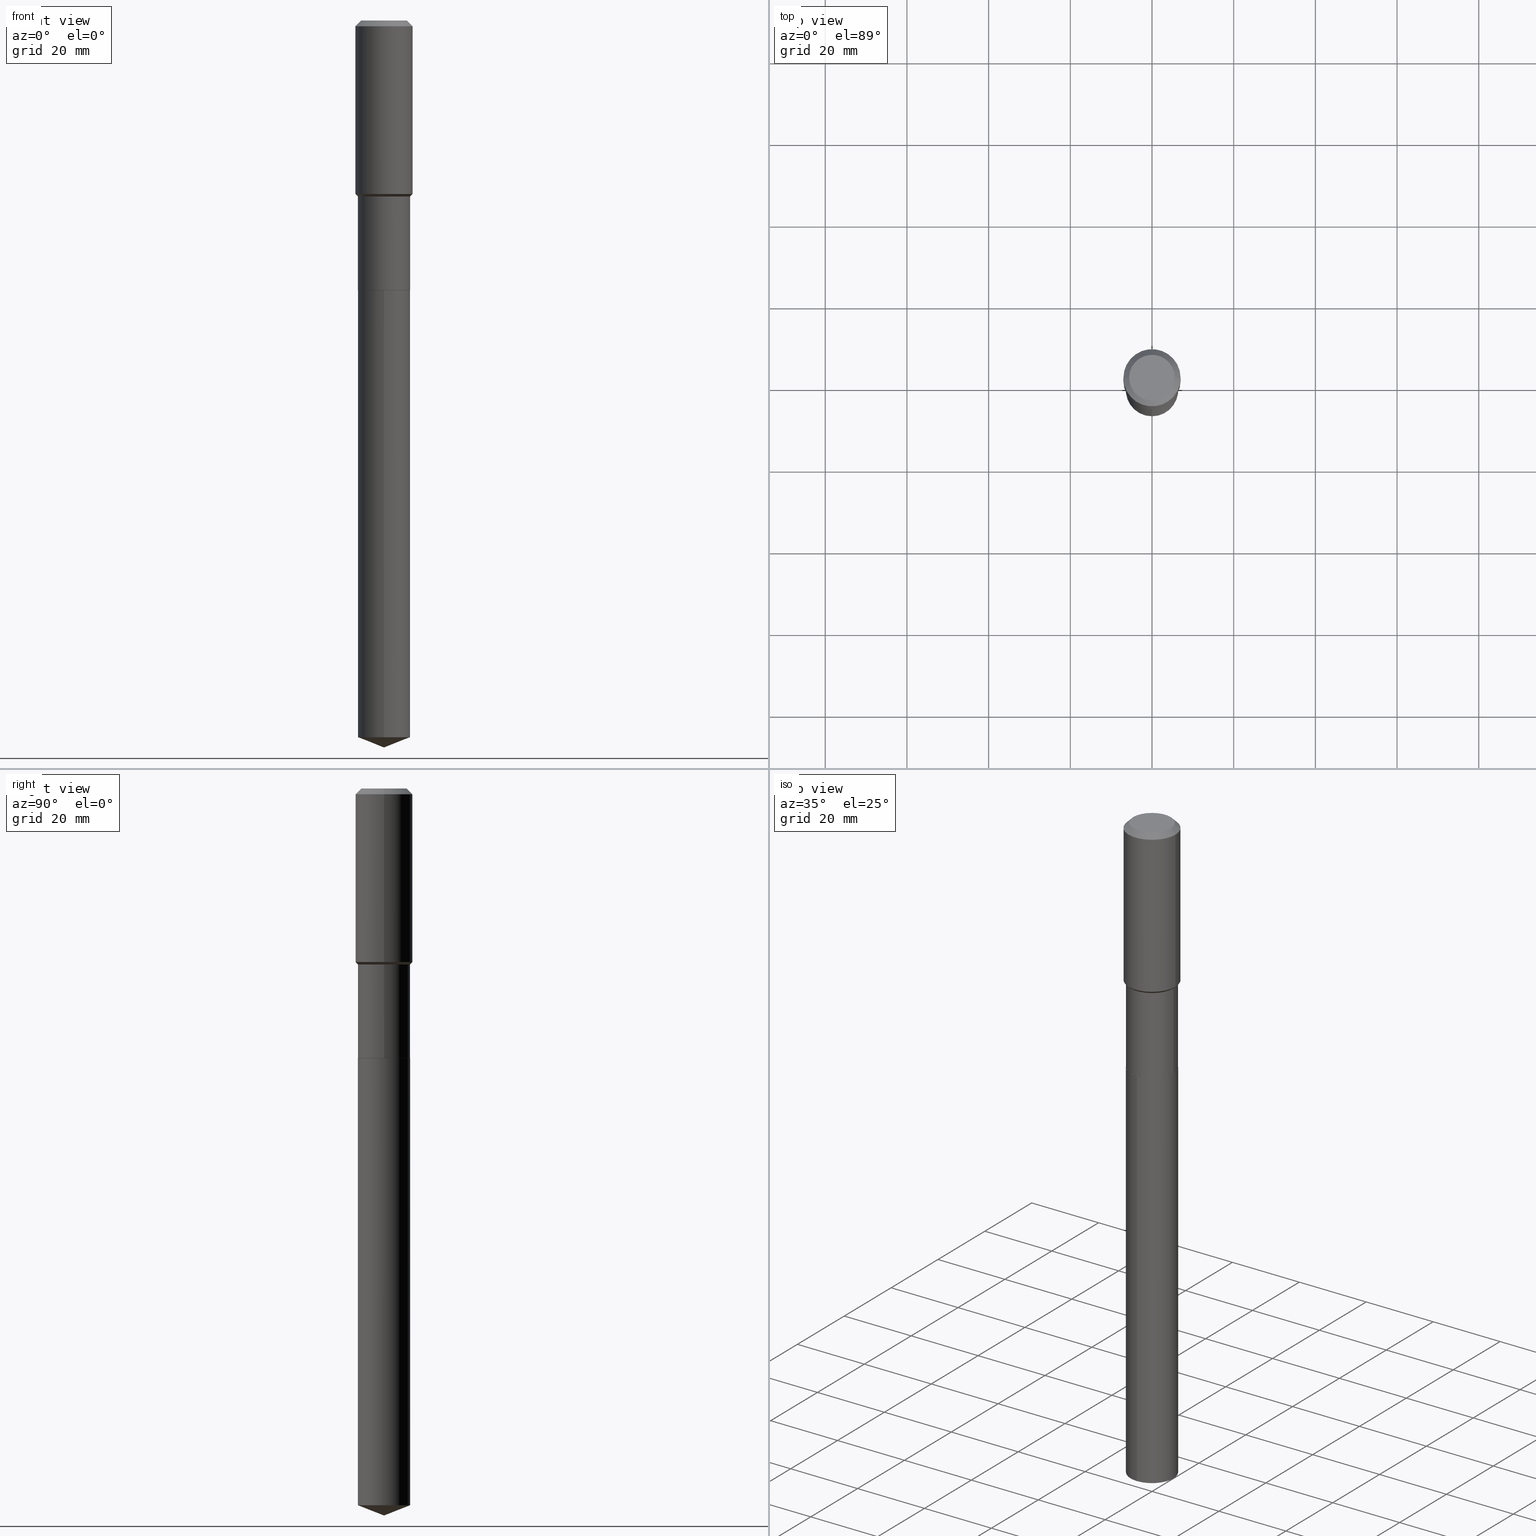
[diagram: canonical four-view strip — front | top / right | iso, engineering-drawing reading convention]
A machine part, canonical four-view strip (front | top / right | iso — engineering-drawing reading convention). The complete STEP part file that produces these views, byte-faithful:
ISO-10303-21;
HEADER;
FILE_DESCRIPTION (( 'STEP AP203' ),
    '1' );
FILE_NAME ('66698.STEP',
    '2024-04-25T03:58:21',
    ( '' ),
    ( '' ),
    'SwSTEP 2.0',
    'SolidWorks 2023',
    '' );
FILE_SCHEMA (( 'CONFIG_CONTROL_DESIGN' ));
ENDSEC;

DATA;
#1 = ORIENTED_EDGE ( 'NONE', *, *, #178, .T. ) ;
#2 = DIRECTION ( 'NONE',  ( -2.445468806185136597E-29, 3.491481338843145583E-15, 1.000000000000000000 ) ) ;
#3 = CARTESIAN_POINT ( 'NONE',  ( 1.790212422747741681E-15, 0.2519499999999759710, -6.908654255668817967 ) ) ;
#4 = CIRCLE ( 'NONE', #245, 0.2756000000000000116 ) ;
#5 = CONICAL_SURFACE ( 'NONE', #13, 0.2514500000000000068, 0.7853981633967311859 ) ;
#6 = LENGTH_MEASURE_WITH_UNIT ( LENGTH_MEASURE( 0.02539999999999999897 ), #311 );
#7 = DIRECTION ( 'NONE',  ( -2.445440840805038678E-29, 3.491521386859136235E-15, 1.000000000000000000 ) ) ;
#8 = FACE_OUTER_BOUND ( 'NONE', #57, .T. ) ;
#9 = CARTESIAN_POINT ( 'NONE',  ( 6.354550692872080783E-29, -9.072614258983919289E-15, -2.598500000000001364 ) ) ;
#10 = DIRECTION ( 'NONE',  ( 0.000000000000000000, 0.000000000000000000, 1.000000000000000000 ) ) ;
#11 = DIRECTION ( 'NONE',  ( 1.000000000000000000, -6.982962677686265922E-15, 0.000000000000000000 ) ) ;
#12 = ADVANCED_FACE ( 'NONE', ( #8 ), #264, .F. ) ;
#13 = AXIS2_PLACEMENT_3D ( 'NONE', #9, #149, #302 ) ;
#14 = CARTESIAN_POINT ( 'NONE',  ( 1.790212422747741681E-15, 0.2519499999999909035, -2.598500000000001808 ) ) ;
#15 = APPROVAL_STATUS ( 'not_yet_approved' ) ;
#16 = EDGE_CURVE ( 'NONE', #318, #445, #433, .T. ) ;
#17 = VECTOR ( 'NONE', #417, 39.37007874015748854 ) ;
#18 = VECTOR ( 'NONE', #374, 39.37007874015748854 ) ;
#19 = CIRCLE ( 'NONE', #246, 0.2756000000000000116 ) ;
#20 = EDGE_CURVE ( 'NONE', #97, #209, #52, .T. ) ;
#21 = CARTESIAN_POINT ( 'NONE',  ( -0.2204800000000000093, 1.635828836874783961E-15, 3.860086710901350968E-18 ) ) ;
#22 = CARTESIAN_POINT ( 'NONE',  ( -7.913972092057348265E-28, 1.129933432613874619E-13, 32.36217874015748208 ) ) ;
#23 = VERTEX_POINT ( 'NONE', #14 ) ;
#24 = DIRECTION ( 'NONE',  ( -2.445468806185136597E-29, 3.491481338843145583E-15, 1.000000000000000000 ) ) ;
#25 = CARTESIAN_POINT ( 'NONE',  ( 6.354550692872079662E-29, -9.072614258983917712E-15, -2.598500000000000920 ) ) ;
#26 = APPROVAL_STATUS ( 'not_yet_approved' ) ;
#27 = ORIENTED_EDGE ( 'NONE', *, *, #67, .T. ) ;
#28 = DIRECTION ( 'NONE',  ( -2.445440840805038678E-29, 3.491521386859136235E-15, 1.000000000000000000 ) ) ;
#29 = CIRCLE ( 'NONE', #441, 0.2514500000000000068 ) ;
#30 = VERTEX_POINT ( 'NONE', #431 ) ;
#31 = CARTESIAN_POINT ( 'NONE',  ( -9.439721640706190018E-47, 1.347742071746724849E-32, 3.860086710912454339E-18 ) ) ;
#32 = PRODUCT_RELATED_PRODUCT_CATEGORY ( 'detail', '', ( #320 ) ) ;
#33 = EDGE_LOOP ( 'NONE', ( #1, #306, #91, #294 ) ) ;
#34 = PERSON ( 'UNSPECIFIED', 'UNSPECIFIED', 'UNSPECIFIED', ('UNSPECIFIED'), ('UNSPECIFIED'), ('UNSPECIFIED') ) ;
#35 = CARTESIAN_POINT ( 'NONE',  ( 0.2204800000000000093, -1.797903149065768707E-15, 3.860086710924123164E-18 ) ) ;
#36 = DIRECTION ( 'NONE',  ( 2.445468806185136597E-29, -3.491481338843145583E-15, -1.000000000000000000 ) ) ;
#37 = ORIENTED_EDGE ( 'NONE', *, *, #171, .F. ) ;
#38 = CARTESIAN_POINT ( 'NONE',  ( -1.759357446642991099E-15, -0.2519500000000090556, -2.598499999999999588 ) ) ;
#39 = VECTOR ( 'NONE', #81, 39.37007874015748854 ) ;
#40 = ORIENTED_EDGE ( 'NONE', *, *, #171, .T. ) ;
#41 = AXIS2_PLACEMENT_3D ( 'NONE', #142, #176, #416 ) ;
#42 = CARTESIAN_POINT ( 'NONE',  ( 1.689477793985424513E-28, -2.412161002331351193E-14, -6.908654255668817079 ) ) ;
#43 = EDGE_CURVE ( 'NONE', #74, #30, #157, .T. ) ;
#44 = LINE ( 'NONE', #150, #114 ) ;
#45 = DIRECTION ( 'NONE',  ( -2.438088387897960049E-29, 3.491481338843145188E-15, 1.000000000000000000 ) ) ;
#46 = APPROVAL_STATUS ( 'not_yet_approved' ) ;
#47 = CARTESIAN_POINT ( 'NONE',  ( 4.147759642170611054E-29, -5.921901498811861064E-15, -1.696100000000000607 ) ) ;
#48 = CALENDAR_DATE ( 2024, 24, 4 ) ;
#49 = DIRECTION ( 'NONE',  ( -6.497071151882119836E-15, -0.9304175679820245737, 0.3665012267242972466 ) ) ;
#50 = CONICAL_SURFACE ( 'NONE', #466, 99.94676754583990430, 1.195550537616119291 ) ;
#51 = CIRCLE ( 'NONE', #41, 0.2519499999999998963 ) ;
#52 = LINE ( 'NONE', #231, #308 ) ;
#53 = ADVANCED_FACE ( 'NONE', ( #409 ), #402, .T. ) ;
#54 = ADVANCED_FACE ( 'NONE', ( #183 ), #381, .T. ) ;
#55 = ADVANCED_FACE ( 'NONE', ( #241 ), #50, .T. ) ;
#56 = DIRECTION ( 'NONE',  ( -2.445440840805038678E-29, 3.491521386859136235E-15, 1.000000000000000000 ) ) ;
#57 = EDGE_LOOP ( 'NONE', ( #174, #124 ) ) ;
#58 = ORIENTED_EDGE ( 'NONE', *, *, #230, .T. ) ;
#59 = DIRECTION ( 'NONE',  ( 1.000000000000000000, -6.982962677686267499E-15, 4.876176775795935793E-29 ) ) ;
#60 = DIRECTION ( 'NONE',  ( 1.000000000000000000, -6.982962677686267499E-15, 4.876176775795935793E-29 ) ) ;
#61 = VERTEX_POINT ( 'NONE', #453 ) ;
#62 = DIRECTION ( 'NONE',  ( -2.445468806185136597E-29, 3.491481338843145583E-15, 1.000000000000000000 ) ) ;
#63 = DIRECTION ( 'NONE',  ( -2.445468806185136597E-29, 3.491481338843145583E-15, 1.000000000000000000 ) ) ;
#64 = ORIENTED_EDGE ( 'NONE', *, *, #108, .T. ) ;
#65 = LINE ( 'NONE', #299, #232 ) ;
#66 = AXIS2_PLACEMENT_3D ( 'NONE', #47, #464, #270 ) ;
#67 = EDGE_CURVE ( 'NONE', #465, #332, #104, .T. ) ;
#68 = VECTOR ( 'NONE', #324, 39.37007874015748143 ) ;
#69 = ORIENTED_EDGE ( 'NONE', *, *, #305, .T. ) ;
#70 = DIRECTION ( 'NONE',  ( -2.445468806185136877E-29, 3.491481338843145188E-15, 1.000000000000000000 ) ) ;
#71 = CC_DESIGN_SECURITY_CLASSIFICATION ( #437, ( #161 ) ) ;
#72 = APPROVAL ( #15, 'UNSPECIFIED' ) ;
#73 = DIRECTION ( 'NONE',  ( -6.982962677686265922E-15, -1.000000000000000000, 4.337127197720600657E-15 ) ) ;
#74 = VERTEX_POINT ( 'NONE', #403 ) ;
#75 = CARTESIAN_POINT ( 'NONE',  ( -0.2756000000000001227, 1.958255779754836984E-15, -1.355658510874252567E-29 ) ) ;
#76 = FACE_OUTER_BOUND ( 'NONE', #378, .T. ) ;
#77 = DIRECTION ( 'NONE',  ( -2.445468806185136597E-29, 3.491481338843145583E-15, 1.000000000000000000 ) ) ;
#78 = LOCAL_TIME ( 23, 58, 21.00000000000000000, #421 ) ;
#79 = PERSON_AND_ORGANIZATION ( #34, #287 ) ;
#80 = DIRECTION ( 'NONE',  ( -2.445468806185136597E-29, 3.491481338843145583E-15, 1.000000000000000000 ) ) ;
#81 = DIRECTION ( 'NONE',  ( 0.7071067811860403118, -2.468850131076945266E-15, 0.7071067811870545006 ) ) ;
#82 = VERTEX_POINT ( 'NONE', #450 ) ;
#83 = EDGE_CURVE ( 'NONE', #130, #23, #160, .T. ) ;
#84 = ORIENTED_EDGE ( 'NONE', *, *, #83, .T. ) ;
#85 = AXIS2_PLACEMENT_3D ( 'NONE', #468, #77, #11 ) ;
#86 = APPROVAL_DATE_TIME ( #198, #257 ) ;
#87 = ADVANCED_FACE ( 'NONE', ( #139 ), #293, .T. ) ;
#88 = CIRCLE ( 'NONE', #103, 0.2519500000000000073 ) ;
#89 = ORIENTED_EDGE ( 'NONE', *, *, #303, .F. ) ;
#90 = ADVANCED_FACE ( 'NONE', ( #442 ), #406, .T. ) ;
#91 = ORIENTED_EDGE ( 'NONE', *, *, #83, .F. ) ;
#92 = CONICAL_SURFACE ( 'NONE', #355, 0.2519499999999998963, 0.7853981633974519427 ) ;
#93 = DIRECTION ( 'NONE',  ( -2.445468806185136597E-29, 3.491481338843145583E-15, 1.000000000000000000 ) ) ;
#94 = LOCAL_TIME ( 23, 58, 21.00000000000000000, #471 ) ;
#95 = EDGE_LOOP ( 'NONE', ( #169, #448, #286, #317 ) ) ;
#96 = DIRECTION ( 'NONE',  ( -0.7071067811865451302, 2.468850131082231817E-15, -0.7071067811865499042 ) ) ;
#97 = VERTEX_POINT ( 'NONE', #371 ) ;
#98 = EDGE_CURVE ( 'NONE', #61, #418, #29, .T. ) ;
#99 = CARTESIAN_POINT ( 'NONE',  ( -1.759357446642991099E-15, -0.2519500000000090556, -2.598499999999999588 ) ) ;
#100 = EDGE_LOOP ( 'NONE', ( #84, #123 ) ) ;
#101 = EDGE_CURVE ( 'NONE', #137, #399, #328, .T. ) ;
#102 = CARTESIAN_POINT ( 'NONE',  ( 6.354550692872079662E-29, -9.072614258983917712E-15, -2.598500000000000920 ) ) ;
#103 = AXIS2_PLACEMENT_3D ( 'NONE', #190, #463, #262 ) ;
#104 = LINE ( 'NONE', #331, #358 ) ;
#105 = EDGE_LOOP ( 'NONE', ( #460, #369, #228, #439 ) ) ;
#106 = LINE ( 'NONE', #99, #68 ) ;
#107 = DIRECTION ( 'NONE',  ( -1.000000000000000000, 6.982962677686267499E-15, 0.000000000000000000 ) ) ;
#108 = EDGE_CURVE ( 'NONE', #30, #399, #277, .T. ) ;
#109 = EDGE_LOOP ( 'NONE', ( #184, #291, #259 ) ) ;
#110 = APPROVAL_DATE_TIME ( #461, #72 ) ;
#111 = DIRECTION ( 'NONE',  ( -2.445468806185136877E-29, 3.491481338843145188E-15, 1.000000000000000000 ) ) ;
#112 = ADVANCED_FACE ( 'NONE', ( #300 ), #194, .F. ) ;
#113 = DIRECTION ( 'NONE',  ( -2.445440840805038678E-29, 3.491521386859136235E-15, 1.000000000000000000 ) ) ;
#114 = VECTOR ( 'NONE', #113, 39.37007874015748143 ) ;
#115 =( CONVERSION_BASED_UNIT ( 'INCH', #6 ) LENGTH_UNIT ( ) NAMED_UNIT ( #116 ) );
#116 = DIMENSIONAL_EXPONENTS ( 1.000000000000000000, 0.000000000000000000, 0.000000000000000000, 0.000000000000000000, 0.000000000000000000, 0.000000000000000000, 0.000000000000000000 ) ;
#117 = CARTESIAN_POINT ( 'NONE',  ( -0.2519500000000000073, -5.706172585815604588E-15, -2.598000000000000753 ) ) ;
#118 = CARTESIAN_POINT ( 'NONE',  ( 0.000000000000000000, 0.000000000000000000, 0.000000000000000000 ) ) ;
#119 = DIRECTION ( 'NONE',  ( -2.445440840805038678E-29, 3.491521386859136235E-15, 1.000000000000000000 ) ) ;
#120 = AXIS2_PLACEMENT_3D ( 'NONE', #336, #36, #107 ) ;
#121 = CONICAL_SURFACE ( 'NONE', #398, 0.2756000000000000116, 0.7853981633974449483 ) ;
#122 = ADVANCED_FACE ( 'NONE', ( #76 ), #454, .T. ) ;
#123 = ORIENTED_EDGE ( 'NONE', *, *, #477, .T. ) ;
#124 = ORIENTED_EDGE ( 'NONE', *, *, #430, .F. ) ;
#125 = CIRCLE ( 'NONE', #443, 0.2204800000000000093 ) ;
#126 = APPROVAL_ROLE ( '' ) ;
#127 = ORIENTED_EDGE ( 'NONE', *, *, #395, .F. ) ;
#128 = EDGE_CURVE ( 'NONE', #418, #137, #267, .T. ) ;
#129 = DIRECTION ( 'NONE',  ( -2.445440840805038678E-29, 3.491521386859136235E-15, 1.000000000000000000 ) ) ;
#130 = VERTEX_POINT ( 'NONE', #38 ) ;
#131 = DIRECTION ( 'NONE',  ( 0.7071067811865500152, -2.468850131082283093E-15, 0.7071067811865447972 ) ) ;
#132 = EDGE_LOOP ( 'NONE', ( #436, #69 ) ) ;
#133 = CLOSED_SHELL ( 'NONE', ( #53, #141, #90, #185, #242, #319, #122, #390, #354, #458, #12, #189 ) ) ;
#134 = CARTESIAN_POINT ( 'NONE',  ( 0.000000000000000000, 0.000000000000000000, 0.000000000000000000 ) ) ;
#135 = AXIS2_PLACEMENT_3D ( 'NONE', #343, #349, #274 ) ;
#136 = DIRECTION ( 'NONE',  ( -6.982962677686268288E-15, -1.000000000000000000, 3.498627837350006589E-15 ) ) ;
#137 = VERTEX_POINT ( 'NONE', #117 ) ;
#138 = CARTESIAN_POINT ( 'NONE',  ( 0.2756000000000000116, -2.116954965367371053E-15, -0.05512000000000037009 ) ) ;
#139 = FACE_OUTER_BOUND ( 'NONE', #95, .T. ) ;
#140 = EDGE_LOOP ( 'NONE', ( #180, #144, #329, #248 ) ) ;
#141 = ADVANCED_FACE ( 'NONE', ( #227 ), #275, .T. ) ;
#142 = CARTESIAN_POINT ( 'NONE',  ( 4.147759642170611054E-29, -5.921901498811861064E-15, -1.696100000000000607 ) ) ;
#143 = DIRECTION ( 'NONE',  ( -2.445440840805038678E-29, 3.491521386859136235E-15, 1.000000000000000000 ) ) ;
#144 = ORIENTED_EDGE ( 'NONE', *, *, #430, .T. ) ;
#145 = CYLINDRICAL_SURFACE ( 'NONE', #456, 0.2519499999999999518 ) ;
#146 = AXIS2_PLACEMENT_3D ( 'NONE', #427, #80, #216 ) ;
#147 = AXIS2_PLACEMENT_3D ( 'NONE', #366, #24, #170 ) ;
#148 = CARTESIAN_POINT ( 'NONE',  ( 1.347942405969256414E-30, -1.924504513970354823E-16, -0.05512000000000037009 ) ) ;
#149 = DIRECTION ( 'NONE',  ( -2.445468806185136597E-29, 3.491481338843145583E-15, 1.000000000000000000 ) ) ;
#150 = CARTESIAN_POINT ( 'NONE',  ( 1.790212422747635579E-15, 0.2519499999999909035, -2.598500000000001808 ) ) ;
#151 = ORIENTED_EDGE ( 'NONE', *, *, #20, .F. ) ;
#152 = APPROVAL_ROLE ( '' ) ;
#153 = DIRECTION ( 'NONE',  ( 2.445440840805038398E-29, -3.491521386859136235E-15, -1.000000000000000000 ) ) ;
#154 = EDGE_LOOP ( 'NONE', ( #151, #296, #474 ) ) ;
#155 = CC_DESIGN_APPROVAL ( #72, ( #382 ) ) ;
#156 = FACE_OUTER_BOUND ( 'NONE', #132, .T. ) ;
#157 = LINE ( 'NONE', #179, #297 ) ;
#158 = CC_DESIGN_DATE_AND_TIME_ASSIGNMENT ( #159, #235, ( #437 ) ) ;
#159 = DATE_AND_TIME ( #325, #199 ) ;
#160 = CIRCLE ( 'NONE', #413, 0.2519500000000000073 ) ;
#161 = PRODUCT_DEFINITION_FORMATION_WITH_SPECIFIED_SOURCE ( 'ANY', '', #320, .NOT_KNOWN. ) ;
#162 = CC_DESIGN_PERSON_AND_ORGANIZATION_ASSIGNMENT ( #208, #201, ( #161 ) ) ;
#163 = PRODUCT_DEFINITION_SHAPE ( 'NONE', 'NONE',  #382 ) ;
#164 = SHAPE_DEFINITION_REPRESENTATION ( #163, #342 ) ;
#165 = EDGE_CURVE ( 'NONE', #61, #74, #380, .T. ) ;
#166 = CIRCLE ( 'NONE', #373, 0.2756000000000002337 ) ;
#167 = DIRECTION ( 'NONE',  ( 1.000000000000000000, -6.982962677686267499E-15, 4.876176775795935793E-29 ) ) ;
#168 = DIRECTION ( 'NONE',  ( -6.982962677686268288E-15, -1.000000000000000000, 3.498627837350006589E-15 ) ) ;
#169 = ORIENTED_EDGE ( 'NONE', *, *, #233, .F. ) ;
#170 = DIRECTION ( 'NONE',  ( 1.000000000000000000, -6.982962677686267499E-15, 0.000000000000000000 ) ) ;
#171 = EDGE_CURVE ( 'NONE', #250, #332, #4, .T. ) ;
#172 = DIRECTION ( 'NONE',  ( 1.000000000000000000, -6.982962677686267499E-15, 0.000000000000000000 ) ) ;
#173 = PERSON_AND_ORGANIZATION ( #34, #287 ) ;
#174 = ORIENTED_EDGE ( 'NONE', *, *, #98, .F. ) ;
#175 = AXIS2_PLACEMENT_3D ( 'NONE', #385, #45, #428 ) ;
#176 = DIRECTION ( 'NONE',  ( -2.445468806185136597E-29, 3.491481338843145583E-15, 1.000000000000000000 ) ) ;
#177 = CC_DESIGN_APPROVAL ( #257, ( #161 ) ) ;
#178 = EDGE_CURVE ( 'NONE', #209, #225, #191, .T. ) ;
#179 = CARTESIAN_POINT ( 'NONE',  ( 0.2519499999999999518, -1.759357446643054800E-15, 1.228552738661785732E-29 ) ) ;
#180 = ORIENTED_EDGE ( 'NONE', *, *, #128, .F. ) ;
#181 = MANIFOLD_SOLID_BREP ( 'Body-Move/Copy2[1]', #350 ) ;
#182 = DIRECTION ( 'NONE',  ( -2.445468806185136597E-29, 3.491481338843145583E-15, 1.000000000000000000 ) ) ;
#183 = FACE_OUTER_BOUND ( 'NONE', #109, .T. ) ;
#184 = ORIENTED_EDGE ( 'NONE', *, *, #475, .F. ) ;
#185 = ADVANCED_FACE ( 'NONE', ( #341 ), #92, .T. ) ;
#186 = CARTESIAN_POINT ( 'NONE',  ( -0.2756000000000000116, -1.057633428517790474E-15, -0.05512000000000037009 ) ) ;
#187 = DIRECTION ( 'NONE',  ( -2.445468806185136597E-29, 3.491481338843145583E-15, 1.000000000000000000 ) ) ;
#188 = EDGE_LOOP ( 'NONE', ( #365, #282, #478, #280 ) ) ;
#189 = ADVANCED_FACE ( 'NONE', ( #345 ), #5, .T. ) ;
#190 = CARTESIAN_POINT ( 'NONE',  ( 6.354550692872079662E-29, -9.072614258983917712E-15, -2.598500000000000920 ) ) ;
#191 = CIRCLE ( 'NONE', #315, 0.2519500000000000073 ) ;
#192 = CIRCLE ( 'NONE', #316, 0.2519500000000000073 ) ;
#193 = CARTESIAN_POINT ( 'NONE',  ( 0.2514500000000000068, -1.082848022428813148E-14, -2.598500000000001364 ) ) ;
#194 = PLANE ( 'NONE',  #338 ) ;
#195 = MANIFOLD_SOLID_BREP ( 'Body-Move/Copy2[2]', #133 ) ;
#196 = CARTESIAN_POINT ( 'NONE',  ( 1.713755147878386914E-28, -2.446802459743104085E-14, -7.007900000000000240 ) ) ;
#197 = CARTESIAN_POINT ( 'NONE',  ( 4.147759642170611054E-29, -5.921901498811861064E-15, -1.696100000000000607 ) ) ;
#198 = DATE_AND_TIME ( #48, #237 ) ;
#199 = LOCAL_TIME ( 23, 58, 21.00000000000000000, #368 ) ;
#200 = DIRECTION ( 'NONE',  ( 1.000000000000000000, -6.982962677686267499E-15, 0.000000000000000000 ) ) ;
#201 = PERSON_AND_ORGANIZATION_ROLE ( 'creator' ) ;
#202 = AXIS2_PLACEMENT_3D ( 'NONE', #284, #129, #207 ) ;
#203 = PERSON_AND_ORGANIZATION ( #34, #287 ) ;
#204 = ORIENTED_EDGE ( 'NONE', *, *, #205, .T. ) ;
#205 = EDGE_CURVE ( 'NONE', #74, #137, #339, .T. ) ;
#206 = CARTESIAN_POINT ( 'NONE',  ( -0.2756000000000000116, 1.732054062573299841E-15, -0.05512000000000037009 ) ) ;
#207 = DIRECTION ( 'NONE',  ( -6.982962677686265922E-15, -1.000000000000000000, 4.337127197720600657E-15 ) ) ;
#208 = PERSON_AND_ORGANIZATION ( #34, #287 ) ;
#209 = VERTEX_POINT ( 'NONE', #377 ) ;
#210 = FACE_OUTER_BOUND ( 'NONE', #33, .T. ) ;
#211 = ORIENTED_EDGE ( 'NONE', *, *, #98, .T. ) ;
#212 = CARTESIAN_POINT ( 'NONE',  ( 6.354550692872080783E-29, -9.072614258983919289E-15, -2.598500000000001364 ) ) ;
#213 =( GEOMETRIC_REPRESENTATION_CONTEXT ( 3 ) GLOBAL_UNCERTAINTY_ASSIGNED_CONTEXT ( ( #281 ) ) GLOBAL_UNIT_ASSIGNED_CONTEXT ( ( #115, #346, #429 ) ) REPRESENTATION_CONTEXT ( 'NONE', 'WORKASPACE' ) );
#214 = ORIENTED_EDGE ( 'NONE', *, *, #394, .F. ) ;
#215 = CARTESIAN_POINT ( 'NONE',  ( 0.000000000000000000, 0.000000000000000000, 0.000000000000000000 ) ) ;
#216 = DIRECTION ( 'NONE',  ( 1.000000000000000000, -6.982962677686269077E-15, 0.000000000000000000 ) ) ;
#217 = EDGE_CURVE ( 'NONE', #465, #82, #166, .T. ) ;
#218 = ORIENTED_EDGE ( 'NONE', *, *, #128, .T. ) ;
#219 = CALENDAR_DATE ( 2024, 24, 4 ) ;
#220 = CARTESIAN_POINT ( 'NONE',  ( -0.2514500000000000068, -7.285954549915147718E-15, -2.598500000000001364 ) ) ;
#221 = DATE_AND_TIME ( #269, #78 ) ;
#222 = AXIS2_PLACEMENT_3D ( 'NONE', #447, #63, #60 ) ;
#223 = APPROVAL_PERSON_ORGANIZATION ( #79, #72, #152 ) ;
#224 = CARTESIAN_POINT ( 'NONE',  ( 4.089924304904332418E-29, -5.839327965148219607E-15, -1.672450000000000436 ) ) ;
#225 = VERTEX_POINT ( 'NONE', #3 ) ;
#226 = PERSON_AND_ORGANIZATION ( #34, #287 ) ;
#227 = FACE_OUTER_BOUND ( 'NONE', #480, .T. ) ;
#228 = ORIENTED_EDGE ( 'NONE', *, *, #43, .T. ) ;
#229 = PERSON_AND_ORGANIZATION ( #34, #287 ) ;
#230 = EDGE_CURVE ( 'NONE', #332, #250, #19, .T. ) ;
#231 = CARTESIAN_POINT ( 'NONE',  ( 1.713740486827763299E-28, -2.446823272697014295E-14, -7.007900000000000240 ) ) ;
#232 = VECTOR ( 'NONE', #131, 39.37007874015748854 ) ;
#233 = EDGE_CURVE ( 'NONE', #225, #23, #44, .T. ) ;
#234 = DIRECTION ( 'NONE',  ( 1.000000000000000000, -6.982962677686266711E-15, 4.876132675269083677E-29 ) ) ;
#235 = DATE_TIME_ROLE ( 'classification_date' ) ;
#236 = ORIENTED_EDGE ( 'NONE', *, *, #217, .F. ) ;
#237 = LOCAL_TIME ( 23, 58, 21.00000000000000000, #389 ) ;
#238 = PERSON_AND_ORGANIZATION_ROLE ( 'classification_officer' ) ;
#239 = EDGE_CURVE ( 'NONE', #137, #74, #330, .T. ) ;
#240 = EDGE_LOOP ( 'NONE', ( #89, #455, #253, #40 ) ) ;
#241 = FACE_OUTER_BOUND ( 'NONE', #154, .T. ) ;
#242 = ADVANCED_FACE ( 'NONE', ( #327 ), #376, .T. ) ;
#243 = EDGE_LOOP ( 'NONE', ( #64, #323, #236, #127 ) ) ;
#244 = APPLICATION_CONTEXT ( 'configuration controlled 3d designs of mechanical parts and assemblies' ) ;
#245 = AXIS2_PLACEMENT_3D ( 'NONE', #263, #387, #261 ) ;
#246 = AXIS2_PLACEMENT_3D ( 'NONE', #148, #384, #310 ) ;
#247 = CARTESIAN_POINT ( 'NONE',  ( -0.2519499999999998963, -4.131689076064289383E-15, -1.696100000000000607 ) ) ;
#248 = ORIENTED_EDGE ( 'NONE', *, *, #239, .F. ) ;
#249 = CARTESIAN_POINT ( 'NONE',  ( -0.2514500000000000068, -7.283305322741034150E-15, -2.598500000000001364 ) ) ;
#250 = VERTEX_POINT ( 'NONE', #186 ) ;
#251 = CARTESIAN_POINT ( 'NONE',  ( 0.2756000000000000116, -2.083203699582869812E-15, -0.05512000000000037009 ) ) ;
#252 = DIRECTION ( 'NONE',  ( -2.445468806185136597E-29, 3.491481338843145583E-15, 1.000000000000000000 ) ) ;
#253 = ORIENTED_EDGE ( 'NONE', *, *, #357, .T. ) ;
#254 = AXIS2_PLACEMENT_3D ( 'NONE', #487, #363, #200 ) ;
#255 = AXIS2_PLACEMENT_3D ( 'NONE', #215, #93, #167 ) ;
#256 = DIRECTION ( 'NONE',  ( -6.982962677686265922E-15, -1.000000000000000000, 4.337127197720600657E-15 ) ) ;
#257 = APPROVAL ( #46, 'UNSPECIFIED' ) ;
#258 = CARTESIAN_POINT ( 'NONE',  ( -7.913972092057348265E-28, 1.129933432613874619E-13, 32.36217874015748208 ) ) ;
#259 = ORIENTED_EDGE ( 'NONE', *, *, #472, .F. ) ;
#260 = LINE ( 'NONE', #251, #351 ) ;
#261 = DIRECTION ( 'NONE',  ( 1.000000000000000000, -6.982962677686267499E-15, 0.000000000000000000 ) ) ;
#262 = DIRECTION ( 'NONE',  ( -6.982962677686265922E-15, -1.000000000000000000, 4.337127197720600657E-15 ) ) ;
#263 = CARTESIAN_POINT ( 'NONE',  ( 1.347942405969256414E-30, -1.924504513970354823E-16, -0.05512000000000037009 ) ) ;
#264 = PLANE ( 'NONE',  #175 ) ;
#265 = CARTESIAN_POINT ( 'NONE',  ( 0.2756000000000002337, -7.763832479118556138E-15, -1.672450000000000436 ) ) ;
#266 = LOCAL_TIME ( 23, 58, 21.00000000000000000, #364 ) ;
#267 = LINE ( 'NONE', #220, #17 ) ;
#268 = CC_DESIGN_PERSON_AND_ORGANIZATION_ASSIGNMENT ( #173, #238, ( #437 ) ) ;
#269 = CALENDAR_DATE ( 2024, 24, 4 ) ;
#270 = DIRECTION ( 'NONE',  ( 1.000000000000000000, -6.982962677686269077E-15, 0.000000000000000000 ) ) ;
#271 = PLANE ( 'NONE',  #135 ) ;
#272 = EDGE_CURVE ( 'NONE', #209, #130, #106, .T. ) ;
#273 = ORIENTED_EDGE ( 'NONE', *, *, #43, .F. ) ;
#274 = DIRECTION ( 'NONE',  ( -1.000000000000000000, 6.982962677686265922E-15, -4.876176775795935793E-29 ) ) ;
#275 = CONICAL_SURFACE ( 'NONE', #120, 0.2756000000000000116, 0.7853981633974449483 ) ;
#276 = DATE_AND_TIME ( #438, #266 ) ;
#277 = CIRCLE ( 'NONE', #66, 0.2519499999999998963 ) ;
#278 = VECTOR ( 'NONE', #111, 39.37007874015748143 ) ;
#279 = AXIS2_PLACEMENT_3D ( 'NONE', #102, #28, #256 ) ;
#280 = ORIENTED_EDGE ( 'NONE', *, *, #67, .F. ) ;
#281 = UNCERTAINTY_MEASURE_WITH_UNIT (LENGTH_MEASURE( 1.000000000000000082E-05 ), #115, 'distance_accuracy_value', 'NONE');
#282 = ORIENTED_EDGE ( 'NONE', *, *, #313, .T. ) ;
#283 = DIRECTION ( 'NONE',  ( -2.445468806185136597E-29, 3.491481338843145583E-15, 1.000000000000000000 ) ) ;
#284 = CARTESIAN_POINT ( 'NONE',  ( 6.354550692872079662E-29, -9.072614258983917712E-15, -2.598500000000000920 ) ) ;
#285 = SECURITY_CLASSIFICATION_LEVEL ( 'unclassified' ) ;
#286 = ORIENTED_EDGE ( 'NONE', *, *, #272, .T. ) ;
#287 = ORGANIZATION ( 'UNSPECIFIED', 'UNSPECIFIED', '' ) ;
#288 = DIRECTION ( 'NONE',  ( 1.000000000000000000, -6.982962677686267499E-15, 4.876176775795935793E-29 ) ) ;
#289 = DIRECTION ( 'NONE',  ( -2.445468806185136877E-29, 3.491481338843145188E-15, 1.000000000000000000 ) ) ;
#290 = PERSON_AND_ORGANIZATION ( #34, #287 ) ;
#291 = ORIENTED_EDGE ( 'NONE', *, *, #20, .T. ) ;
#292 = CARTESIAN_POINT ( 'NONE',  ( 1.347942405969256414E-30, -1.924504513970354823E-16, -0.05512000000000037009 ) ) ;
#293 = CYLINDRICAL_SURFACE ( 'NONE', #202, 0.2519500000000000073 ) ;
#294 = ORIENTED_EDGE ( 'NONE', *, *, #272, .F. ) ;
#295 = FACE_OUTER_BOUND ( 'NONE', #105, .T. ) ;
#296 = ORIENTED_EDGE ( 'NONE', *, *, #475, .T. ) ;
#297 = VECTOR ( 'NONE', #483, 39.37007874015748143 ) ;
#298 = CIRCLE ( 'NONE', #147, 0.2756000000000002337 ) ;
#299 = CARTESIAN_POINT ( 'NONE',  ( 0.2519499999999998963, -7.681258945454915470E-15, -1.696100000000000607 ) ) ;
#300 = FACE_OUTER_BOUND ( 'NONE', #100, .T. ) ;
#301 = DIRECTION ( 'NONE',  ( 1.000000000000000000, 0.000000000000000000, 0.000000000000000000 ) ) ;
#302 = DIRECTION ( 'NONE',  ( 1.000000000000000000, -6.982962677686267499E-15, 0.000000000000000000 ) ) ;
#303 = EDGE_CURVE ( 'NONE', #445, #332, #260, .T. ) ;
#304 = CARTESIAN_POINT ( 'NONE',  ( 1.689477793985424513E-28, -2.412161002331351193E-14, -6.908654255668817079 ) ) ;
#305 = EDGE_CURVE ( 'NONE', #445, #318, #125, .T. ) ;
#306 = ORIENTED_EDGE ( 'NONE', *, *, #233, .T. ) ;
#307 = PERSON_AND_ORGANIZATION ( #34, #287 ) ;
#308 = VECTOR ( 'NONE', #49, 39.37007874015748854 ) ;
#309 = AXIS2_PLACEMENT_3D ( 'NONE', #212, #62, #449 ) ;
#310 = DIRECTION ( 'NONE',  ( 1.000000000000000000, -6.982962677686267499E-15, 0.000000000000000000 ) ) ;
#311 =( LENGTH_UNIT ( ) NAMED_UNIT ( * ) SI_UNIT ( $, .METRE. ) );
#312 = DIRECTION ( 'NONE',  ( 6.611014441532068167E-15, 0.9304175679820272382, 0.3665012267242907518 ) ) ;
#313 = EDGE_CURVE ( 'NONE', #82, #250, #335, .T. ) ;
#314 = PERSON_AND_ORGANIZATION_ROLE ( 'design_supplier' ) ;
#315 = AXIS2_PLACEMENT_3D ( 'NONE', #304, #7, #73 ) ;
#316 = AXIS2_PLACEMENT_3D ( 'NONE', #42, #119, #340 ) ;
#317 = ORIENTED_EDGE ( 'NONE', *, *, #477, .F. ) ;
#318 = VERTEX_POINT ( 'NONE', #21 ) ;
#319 = ADVANCED_FACE ( 'NONE', ( #295 ), #145, .T. ) ;
#320 = PRODUCT ( '66698', '66698', '', ( #353 ) ) ;
#321 = VECTOR ( 'NONE', #312, 39.37007874015747433 ) ;
#322 = APPROVAL_DATE_TIME ( #276, #393 ) ;
#323 = ORIENTED_EDGE ( 'NONE', *, *, #394, .T. ) ;
#324 = DIRECTION ( 'NONE',  ( -2.445440840805038678E-29, 3.491521386859136235E-15, 1.000000000000000000 ) ) ;
#325 = CALENDAR_DATE ( 2024, 24, 4 ) ;
#326 = ORIENTED_EDGE ( 'NONE', *, *, #313, .F. ) ;
#327 = FACE_OUTER_BOUND ( 'NONE', #476, .T. ) ;
#328 = LINE ( 'NONE', #420, #278 ) ;
#329 = ORIENTED_EDGE ( 'NONE', *, *, #165, .T. ) ;
#330 = CIRCLE ( 'NONE', #392, 0.2519500000000000073 ) ;
#331 = CARTESIAN_POINT ( 'NONE',  ( 0.2756000000000001227, -1.924504513970336137E-15, 1.343874319409360548E-29 ) ) ;
#332 = VERTEX_POINT ( 'NONE', #138 ) ;
#333 = CARTESIAN_POINT ( 'NONE',  ( -0.2519499999999998963, -5.706172585815605377E-15, -1.696100000000000607 ) ) ;
#334 = EDGE_LOOP ( 'NONE', ( #326, #451, #27, #37 ) ) ;
#335 = LINE ( 'NONE', #75, #434 ) ;
#336 = CARTESIAN_POINT ( 'NONE',  ( 1.347942405969256414E-30, -1.924504513970354823E-16, -0.05512000000000037009 ) ) ;
#337 = ORIENTED_EDGE ( 'NONE', *, *, #303, .T. ) ;
#338 = AXIS2_PLACEMENT_3D ( 'NONE', #425, #153, #459 ) ;
#339 = CIRCLE ( 'NONE', #85, 0.2519500000000000073 ) ;
#340 = DIRECTION ( 'NONE',  ( -6.982962677686265922E-15, -1.000000000000000000, 4.337127197720600657E-15 ) ) ;
#341 = FACE_OUTER_BOUND ( 'NONE', #243, .T. ) ;
#342 = ADVANCED_BREP_SHAPE_REPRESENTATION ( '66698', ( #181, #195, #467 ), #213 ) ;
#343 = CARTESIAN_POINT ( 'NONE',  ( -4.719860820353095009E-47, 6.738710358733624243E-33, 1.930043355456227170E-18 ) ) ;
#344 = CC_DESIGN_PERSON_AND_ORGANIZATION_ASSIGNMENT ( #290, #314, ( #161 ) ) ;
#345 = FACE_OUTER_BOUND ( 'NONE', #140, .T. ) ;
#346 =( NAMED_UNIT ( * ) PLANE_ANGLE_UNIT ( ) SI_UNIT ( $, .RADIAN. ) );
#347 = DIRECTION ( 'NONE',  ( 1.000000000000000000, -6.982962677686269077E-15, 0.000000000000000000 ) ) ;
#348 = DIRECTION ( 'NONE',  ( -2.445468806185136597E-29, 3.491481338843145583E-15, 1.000000000000000000 ) ) ;
#349 = DIRECTION ( 'NONE',  ( 2.438088387897960049E-29, -3.491481338843145188E-15, -1.000000000000000000 ) ) ;
#350 = CLOSED_SHELL ( 'NONE', ( #435, #55, #54, #87, #112 ) ) ;
#351 = VECTOR ( 'NONE', #479, 39.37007874015748143 ) ;
#352 = DESIGN_CONTEXT ( 'detailed design', #396, 'design' ) ;
#353 = MECHANICAL_CONTEXT ( 'NONE', #244, 'mechanical' ) ;
#354 = ADVANCED_FACE ( 'NONE', ( #440 ), #121, .T. ) ;
#355 = AXIS2_PLACEMENT_3D ( 'NONE', #197, #422, #347 ) ;
#356 = APPROVAL_PERSON_ORGANIZATION ( #226, #257, #426 ) ;
#357 = EDGE_CURVE ( 'NONE', #318, #250, #489, .T. ) ;
#358 = VECTOR ( 'NONE', #289, 39.37007874015748143 ) ;
#359 = DIRECTION ( 'NONE',  ( -6.982962677686265922E-15, -1.000000000000000000, 4.337127197720600657E-15 ) ) ;
#360 = VECTOR ( 'NONE', #96, 39.37007874015748143 ) ;
#361 = CC_DESIGN_PERSON_AND_ORGANIZATION_ASSIGNMENT ( #229, #391, ( #320 ) ) ;
#362 = DIRECTION ( 'NONE',  ( -1.000000000000000000, 6.982962677686267499E-15, 0.000000000000000000 ) ) ;
#363 = DIRECTION ( 'NONE',  ( -2.445468806185136597E-29, 3.491481338843145583E-15, 1.000000000000000000 ) ) ;
#364 = COORDINATED_UNIVERSAL_TIME_OFFSET ( 5, 0, .BEHIND. ) ;
#365 = ORIENTED_EDGE ( 'NONE', *, *, #217, .T. ) ;
#366 = CARTESIAN_POINT ( 'NONE',  ( 4.089924304904332418E-29, -5.839327965148219607E-15, -1.672450000000000436 ) ) ;
#367 = CARTESIAN_POINT ( 'NONE',  ( 6.354550692872080783E-29, -9.072614258983919289E-15, -2.598500000000001364 ) ) ;
#368 = COORDINATED_UNIVERSAL_TIME_OFFSET ( 5, 0, .BEHIND. ) ;
#369 = ORIENTED_EDGE ( 'NONE', *, *, #239, .T. ) ;
#370 = CYLINDRICAL_SURFACE ( 'NONE', #279, 0.2519500000000000073 ) ;
#371 = CARTESIAN_POINT ( 'NONE',  ( 1.713740486827763299E-28, -2.446823272697014295E-14, -7.007900000000000240 ) ) ;
#372 = ORIENTED_EDGE ( 'NONE', *, *, #444, .T. ) ;
#373 = AXIS2_PLACEMENT_3D ( 'NONE', #224, #187, #462 ) ;
#374 = DIRECTION ( 'NONE',  ( -0.7071067811865500152, 7.493145998870362049E-15, 0.7071067811865447972 ) ) ;
#375 = ORIENTED_EDGE ( 'NONE', *, *, #205, .F. ) ;
#376 = CYLINDRICAL_SURFACE ( 'NONE', #415, 0.2519499999999999518 ) ;
#377 = CARTESIAN_POINT ( 'NONE',  ( -1.759357446642886378E-15, -0.2519500000000241546, -6.908654255668815303 ) ) ;
#378 = EDGE_LOOP ( 'NONE', ( #214, #372, #488, #410 ) ) ;
#379 = APPLICATION_PROTOCOL_DEFINITION ( 'international standard', 'config_control_design', 1994, #396 ) ;
#380 = LINE ( 'NONE', #193, #39 ) ;
#381 = CONICAL_SURFACE ( 'NONE', #397, 99.94676754583990430, 1.195550537616119291 ) ;
#382 = PRODUCT_DEFINITION ( 'UNKNOWN', '', #161, #352 ) ;
#383 = DATE_TIME_ROLE ( 'creation_date' ) ;
#384 = DIRECTION ( 'NONE',  ( -2.445468806185136597E-29, 3.491481338843145583E-15, 1.000000000000000000 ) ) ;
#385 = CARTESIAN_POINT ( 'NONE',  ( 2.411818052475197427E-29, -1.471883180643795840E-14, -2.598500000000001364 ) ) ;
#386 = PERSON_AND_ORGANIZATION_ROLE ( 'creator' ) ;
#387 = DIRECTION ( 'NONE',  ( -2.445468806185136597E-29, 3.491481338843145583E-15, 1.000000000000000000 ) ) ;
#388 = CARTESIAN_POINT ( 'NONE',  ( -9.439721640706190018E-47, 1.347742071746724849E-32, 3.860086710912454339E-18 ) ) ;
#389 = COORDINATED_UNIVERSAL_TIME_OFFSET ( 5, 0, .BEHIND. ) ;
#390 = ADVANCED_FACE ( 'NONE', ( #452 ), #412, .T. ) ;
#391 = PERSON_AND_ORGANIZATION_ROLE ( 'design_owner' ) ;
#392 = AXIS2_PLACEMENT_3D ( 'NONE', #486, #283, #446 ) ;
#393 = APPROVAL ( #26, 'UNSPECIFIED' ) ;
#394 = EDGE_CURVE ( 'NONE', #399, #82, #457, .T. ) ;
#395 = EDGE_CURVE ( 'NONE', #30, #465, #65, .T. ) ;
#396 = APPLICATION_CONTEXT ( 'configuration controlled 3d designs of mechanical parts and assemblies' ) ;
#397 = AXIS2_PLACEMENT_3D ( 'NONE', #258, #490, #136 ) ;
#398 = AXIS2_PLACEMENT_3D ( 'NONE', #292, #481, #362 ) ;
#399 = VERTEX_POINT ( 'NONE', #333 ) ;
#400 = CC_DESIGN_PERSON_AND_ORGANIZATION_ASSIGNMENT ( #307, #386, ( #382 ) ) ;
#401 = ORIENTED_EDGE ( 'NONE', *, *, #305, .F. ) ;
#402 = CONICAL_SURFACE ( 'NONE', #254, 0.2514500000000000068, 0.7853981633967311859 ) ;
#403 = CARTESIAN_POINT ( 'NONE',  ( 0.2519500000000000073, -1.083022596495754904E-14, -2.598000000000000753 ) ) ;
#404 = ORIENTED_EDGE ( 'NONE', *, *, #108, .F. ) ;
#405 = CARTESIAN_POINT ( 'NONE',  ( 0.000000000000000000, 0.000000000000000000, 0.000000000000000000 ) ) ;
#406 = CYLINDRICAL_SURFACE ( 'NONE', #222, 0.2756000000000001227 ) ;
#407 = ORIENTED_EDGE ( 'NONE', *, *, #101, .T. ) ;
#408 = DIRECTION ( 'NONE',  ( -2.445468806185136597E-29, 3.491481338843145583E-15, 1.000000000000000000 ) ) ;
#409 = FACE_OUTER_BOUND ( 'NONE', #470, .T. ) ;
#410 = ORIENTED_EDGE ( 'NONE', *, *, #411, .F. ) ;
#411 = EDGE_CURVE ( 'NONE', #82, #465, #298, .T. ) ;
#412 = CYLINDRICAL_SURFACE ( 'NONE', #255, 0.2756000000000001227 ) ;
#413 = AXIS2_PLACEMENT_3D ( 'NONE', #25, #56, #359 ) ;
#414 = ORIENTED_EDGE ( 'NONE', *, *, #165, .F. ) ;
#415 = AXIS2_PLACEMENT_3D ( 'NONE', #134, #2, #288 ) ;
#416 = DIRECTION ( 'NONE',  ( 1.000000000000000000, -6.982962677686269077E-15, 0.000000000000000000 ) ) ;
#417 = DIRECTION ( 'NONE',  ( -0.7071067811860403118, 7.493145998868519270E-15, 0.7071067811870545006 ) ) ;
#418 = VERTEX_POINT ( 'NONE', #249 ) ;
#419 = DIRECTION ( 'NONE',  ( 1.000000000000000000, -6.982962677686266711E-15, 4.876132675269083677E-29 ) ) ;
#420 = CARTESIAN_POINT ( 'NONE',  ( -0.2519499999999999518, 1.790212422747572076E-15, -1.239325695989723260E-29 ) ) ;
#421 = COORDINATED_UNIVERSAL_TIME_OFFSET ( 5, 0, .BEHIND. ) ;
#422 = DIRECTION ( 'NONE',  ( -2.445468806185136597E-29, 3.491481338843145583E-15, 1.000000000000000000 ) ) ;
#423 = CIRCLE ( 'NONE', #309, 0.2514500000000000068 ) ;
#424 = APPLICATION_PROTOCOL_DEFINITION ( 'international standard', 'config_control_design', 1994, #244 ) ;
#425 = CARTESIAN_POINT ( 'NONE',  ( 6.354550692872079662E-29, -9.072614258983917712E-15, -2.598500000000000920 ) ) ;
#426 = APPROVAL_ROLE ( '' ) ;
#427 = CARTESIAN_POINT ( 'NONE',  ( 4.147759642170611054E-29, -5.921901498811861064E-15, -1.696100000000000607 ) ) ;
#428 = DIRECTION ( 'NONE',  ( 1.000000000000000000, -6.982962677686265922E-15, 4.876176775795935793E-29 ) ) ;
#429 =( NAMED_UNIT ( * ) SI_UNIT ( $, .STERADIAN. ) SOLID_ANGLE_UNIT ( ) );
#430 = EDGE_CURVE ( 'NONE', #418, #61, #423, .T. ) ;
#431 = CARTESIAN_POINT ( 'NONE',  ( 0.2519499999999998963, -7.681258945454915470E-15, -1.696100000000000607 ) ) ;
#432 = LINE ( 'NONE', #196, #321 ) ;
#433 = CIRCLE ( 'NONE', #482, 0.2204800000000000093 ) ;
#434 = VECTOR ( 'NONE', #70, 39.37007874015748143 ) ;
#435 = ADVANCED_FACE ( 'NONE', ( #210 ), #370, .T. ) ;
#436 = ORIENTED_EDGE ( 'NONE', *, *, #16, .T. ) ;
#437 = SECURITY_CLASSIFICATION ( '', '', #285 ) ;
#438 = CALENDAR_DATE ( 2024, 24, 4 ) ;
#439 = ORIENTED_EDGE ( 'NONE', *, *, #444, .F. ) ;
#440 = FACE_OUTER_BOUND ( 'NONE', #240, .T. ) ;
#441 = AXIS2_PLACEMENT_3D ( 'NONE', #367, #252, #172 ) ;
#442 = FACE_OUTER_BOUND ( 'NONE', #188, .T. ) ;
#443 = AXIS2_PLACEMENT_3D ( 'NONE', #31, #408, #419 ) ;
#444 = EDGE_CURVE ( 'NONE', #399, #30, #51, .T. ) ;
#445 = VERTEX_POINT ( 'NONE', #35 ) ;
#446 = DIRECTION ( 'NONE',  ( 1.000000000000000000, -6.982962677686265922E-15, 0.000000000000000000 ) ) ;
#447 = CARTESIAN_POINT ( 'NONE',  ( 0.000000000000000000, 0.000000000000000000, 0.000000000000000000 ) ) ;
#448 = ORIENTED_EDGE ( 'NONE', *, *, #472, .T. ) ;
#449 = DIRECTION ( 'NONE',  ( 1.000000000000000000, -6.982962677686267499E-15, 0.000000000000000000 ) ) ;
#450 = CARTESIAN_POINT ( 'NONE',  ( -0.2756000000000002337, -3.881072185393382228E-15, -1.672450000000000436 ) ) ;
#451 = ORIENTED_EDGE ( 'NONE', *, *, #411, .T. ) ;
#452 = FACE_OUTER_BOUND ( 'NONE', #334, .T. ) ;
#453 = CARTESIAN_POINT ( 'NONE',  ( 0.2514500000000000068, -1.082848022428813148E-14, -2.598500000000001364 ) ) ;
#454 = CONICAL_SURFACE ( 'NONE', #146, 0.2519499999999998963, 0.7853981633974519427 ) ;
#455 = ORIENTED_EDGE ( 'NONE', *, *, #16, .F. ) ;
#456 = AXIS2_PLACEMENT_3D ( 'NONE', #405, #182, #59 ) ;
#457 = LINE ( 'NONE', #247, #18 ) ;
#458 = ADVANCED_FACE ( 'NONE', ( #156 ), #271, .F. ) ;
#459 = DIRECTION ( 'NONE',  ( 6.982962677686265922E-15, 1.000000000000000000, -3.491521386859136235E-15 ) ) ;
#460 = ORIENTED_EDGE ( 'NONE', *, *, #101, .F. ) ;
#461 = DATE_AND_TIME ( #219, #94 ) ;
#462 = DIRECTION ( 'NONE',  ( 1.000000000000000000, -6.982962677686267499E-15, 0.000000000000000000 ) ) ;
#463 = DIRECTION ( 'NONE',  ( -2.445440840805038678E-29, 3.491521386859136235E-15, 1.000000000000000000 ) ) ;
#464 = DIRECTION ( 'NONE',  ( -2.445468806185136597E-29, 3.491481338843145583E-15, 1.000000000000000000 ) ) ;
#465 = VERTEX_POINT ( 'NONE', #265 ) ;
#466 = AXIS2_PLACEMENT_3D ( 'NONE', #22, #143, #168 ) ;
#467 = AXIS2_PLACEMENT_3D ( 'NONE', #118, #10, #301 ) ;
#468 = CARTESIAN_POINT ( 'NONE',  ( 6.353327958468985739E-29, -9.070868518314495419E-15, -2.598000000000000753 ) ) ;
#469 = CC_DESIGN_DATE_AND_TIME_ASSIGNMENT ( #221, #383, ( #382 ) ) ;
#470 = EDGE_LOOP ( 'NONE', ( #211, #218, #375, #414 ) ) ;
#471 = COORDINATED_UNIVERSAL_TIME_OFFSET ( 5, 0, .BEHIND. ) ;
#472 = EDGE_CURVE ( 'NONE', #225, #209, #192, .T. ) ;
#473 = CC_DESIGN_APPROVAL ( #393, ( #437 ) ) ;
#474 = ORIENTED_EDGE ( 'NONE', *, *, #178, .F. ) ;
#475 = EDGE_CURVE ( 'NONE', #97, #225, #432, .T. ) ;
#476 = EDGE_LOOP ( 'NONE', ( #204, #407, #404, #273 ) ) ;
#477 = EDGE_CURVE ( 'NONE', #23, #130, #88, .T. ) ;
#478 = ORIENTED_EDGE ( 'NONE', *, *, #230, .F. ) ;
#479 = DIRECTION ( 'NONE',  ( 0.7071067811865451302, -7.319954787623248157E-15, -0.7071067811865499042 ) ) ;
#480 = EDGE_LOOP ( 'NONE', ( #401, #337, #58, #485 ) ) ;
#481 = DIRECTION ( 'NONE',  ( 2.445468806185136597E-29, -3.491481338843145583E-15, -1.000000000000000000 ) ) ;
#482 = AXIS2_PLACEMENT_3D ( 'NONE', #388, #348, #234 ) ;
#483 = DIRECTION ( 'NONE',  ( -2.445468806185136877E-29, 3.491481338843145188E-15, 1.000000000000000000 ) ) ;
#484 = APPROVAL_PERSON_ORGANIZATION ( #203, #393, #126 ) ;
#485 = ORIENTED_EDGE ( 'NONE', *, *, #357, .F. ) ;
#486 = CARTESIAN_POINT ( 'NONE',  ( 6.353327958468985739E-29, -9.070868518314495419E-15, -2.598000000000000753 ) ) ;
#487 = CARTESIAN_POINT ( 'NONE',  ( 6.354550692872080783E-29, -9.072614258983919289E-15, -2.598500000000001364 ) ) ;
#488 = ORIENTED_EDGE ( 'NONE', *, *, #395, .T. ) ;
#489 = LINE ( 'NONE', #206, #360 ) ;
#490 = DIRECTION ( 'NONE',  ( -2.445440840805038678E-29, 3.491521386859136235E-15, 1.000000000000000000 ) ) ;
ENDSEC;
END-ISO-10303-21;
